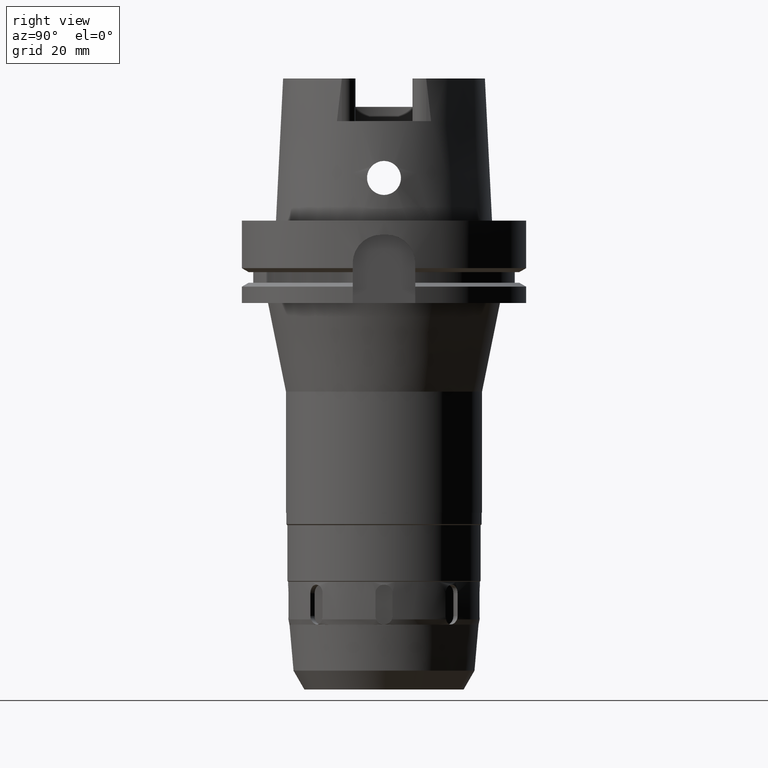
[diagram: clean part render]
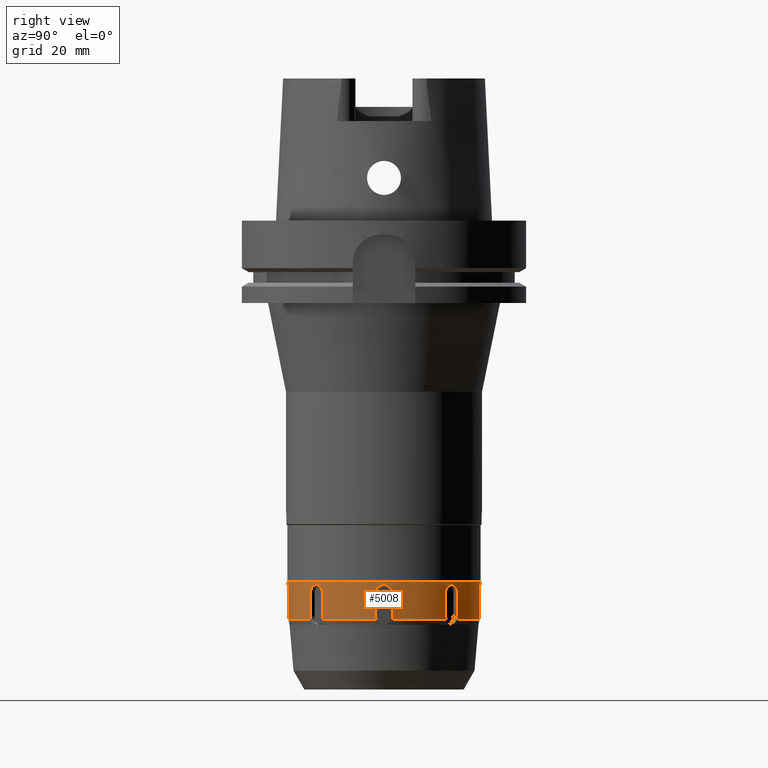
[diagram: same view with one face highlighted and labeled with its STEP entity id]
A machine part, right view. The second image highlights one B-rep face of the part: STEP entity #5008.
In plain terms, the highlighted cylindrical surface (partial cylindrical patch) has radius 33.75 mm, axis along (0, 0, 1).
Its self-contained STEP definition (entity closure, byte-faithful):
#1123=CARTESIAN_POINT('',(2.572974598340E1,2.184130704700E1,-1.402999986457E2));
#1133=CARTESIAN_POINT('',(2.184128028756E1,2.572981701866E1,-1.402998450080E2));
#1138=CARTESIAN_POINT('',(0.E0,0.E0,-1.403E2));
#1139=DIRECTION('',(0.E0,0.E0,1.E0));
#1140=DIRECTION('',(6.471499037996E-1,7.623627758569E-1,0.E0));
#1141=AXIS2_PLACEMENT_3D('',#1138,#1139,#1140);
#1170=CARTESIAN_POINT('',(2.749610718343E0,-3.363784549178E1,
-1.402998449470E2));
#1175=CARTESIAN_POINT('',(0.E0,0.E0,-1.403E2));
#1176=DIRECTION('',(0.E0,0.E0,1.E0));
#1177=DIRECTION('',(8.146780313864E-2,-9.966759739513E-1,0.E0));
#1178=AXIS2_PLACEMENT_3D('',#1175,#1176,#1177);
#1193=CARTESIAN_POINT('',(2.572981703984E1,-2.184128025816E1,
-1.402998450175E2));
#1198=CARTESIAN_POINT('',(0.E0,0.E0,-1.403E2));
#1199=DIRECTION('',(0.E0,0.E0,1.E0));
#1200=DIRECTION('',(7.623627781610E-1,-6.471499010853E-1,0.E0));
#1201=AXIS2_PLACEMENT_3D('',#1198,#1199,#1200);
#1216=CARTESIAN_POINT('',(3.363784548853E1,2.749610737293E0,-1.402998450068E2));
#1221=CARTESIAN_POINT('',(0.E0,0.E0,-1.403E2));
#1222=DIRECTION('',(0.E0,0.E0,1.E0));
#1223=DIRECTION('',(9.966759736240E-1,8.146780714250E-2,0.E0));
#1224=AXIS2_PLACEMENT_3D('',#1221,#1222,#1223);
#1243=CARTESIAN_POINT('',(2.164906564405E1,2.589170633117E1,-1.311E2));
#1244=CARTESIAN_POINT('',(2.164906564405E1,2.589170633117E1,-1.307766049589E2));
#1245=CARTESIAN_POINT('',(2.172534158947E1,2.582823132897E1,-1.301640068E2));
#1246=CARTESIAN_POINT('',(2.205726537707E1,2.554683458031E1,-1.293068180229E2));
#1247=CARTESIAN_POINT('',(2.256409941209E1,2.510234730451E1,-1.286336540263E2));
#1248=CARTESIAN_POINT('',(2.319563703515E1,2.452128148763E1,-1.281991570096E2));
#1249=CARTESIAN_POINT('',(2.363583134255E1,2.409387638756E1,-1.280999999999E2));
#1250=CARTESIAN_POINT('',(2.386485386505E1,2.386485386505E1,-1.280999999999E2));
#1255=CARTESIAN_POINT('',(2.386485386505E1,2.386485386505E1,-1.280999999999E2));
#1256=CARTESIAN_POINT('',(2.409343323396E1,2.363627449615E1,-1.280999999999E2));
#1257=CARTESIAN_POINT('',(2.452024747081E1,2.319673014394E1,-1.281986777436E2));
#1258=CARTESIAN_POINT('',(2.510183463358E1,2.256467609059E1,-1.286330667413E2));
#1259=CARTESIAN_POINT('',(2.554631740194E1,2.205786518577E1,-1.293057424913E2));
#1260=CARTESIAN_POINT('',(2.582813530600E1,2.172545921149E1,-1.301632798498E2));
#1261=CARTESIAN_POINT('',(2.589170633117E1,2.164906564405E1,-1.307763092495E2));
#1262=CARTESIAN_POINT('',(2.589170633117E1,2.164906564405E1,-1.311E2));
#1267=DIRECTION('',(-3.125743280318E-6,-3.299448771821E-6,-9.999999999897E-1));
#1268=VECTOR('',#1267,8.000000012220E0);
#1269=CARTESIAN_POINT('',(2.589170633117E1,2.164906564405E1,-1.311E2));
#1270=LINE('',#1269,#1268);
#1274=CARTESIAN_POINT('',(2.589168132522E1,2.164903924846E1,-1.391000000121E2));
#1275=CARTESIAN_POINT('',(2.589168132522E1,2.164903924846E1,-1.392380587389E2));
#1276=CARTESIAN_POINT('',(2.587960033775E1,2.166358331518E1,-1.395110857448E2));
#1277=CARTESIAN_POINT('',(2.582510928778E1,2.172855005247E1,-1.399159151438E2));
#1278=CARTESIAN_POINT('',(2.576558164292E1,2.179909153825E1,-1.401735407903E2));
#1279=CARTESIAN_POINT('',(2.572974598340E1,2.184130704700E1,-1.402999986457E2));
#1284=CARTESIAN_POINT('',(3.363784548853E1,2.749610737293E0,-1.402998450068E2));
#1285=CARTESIAN_POINT('',(3.363333602986E1,2.804779389328E0,-1.401733794141E2));
#1286=CARTESIAN_POINT('',(3.362550473139E1,2.896678174790E0,-1.399159895307E2));
#1287=CARTESIAN_POINT('',(3.361809570642E1,2.981174801291E0,-1.395110635610E2));
#1288=CARTESIAN_POINT('',(3.361640177101E1,3.000001866533E0,-1.392380584445E2));
#1289=CARTESIAN_POINT('',(3.361640177101E1,3.000001866533E0,-1.391000000002E2));
#1294=DIRECTION('',(5.943944714030E-8,-2.333165945377E-7,1.E0));
#1295=VECTOR('',#1294,8.000000000234E0);
#1296=CARTESIAN_POINT('',(3.361640177101E1,3.000001866533E0,-1.391000000002E2));
#1297=LINE('',#1296,#1295);
#1301=CARTESIAN_POINT('',(3.361640224652E1,3.E0,-1.311E2));
#1302=CARTESIAN_POINT('',(3.361640224652E1,3.E0,-1.307765582536E2));
#1303=CARTESIAN_POINT('',(3.362545719508E1,2.901145332203E0,-1.301639650515E2));
#1304=CARTESIAN_POINT('',(3.366116528376E1,2.467682436359E0,-1.293072142558E2));
#1305=CARTESIAN_POINT('',(3.370520572884E1,1.795845103717E0,-1.286345018785E2));
#1306=CARTESIAN_POINT('',(3.374091857024E1,9.388369475479E-1,
-1.281995746844E2));
#1307=CARTESIAN_POINT('',(3.375E1,3.245166352607E-1,-1.281E2));
#1308=CARTESIAN_POINT('',(3.375E1,0.E0,-1.281E2));
#1313=CARTESIAN_POINT('',(3.375E1,0.E0,-1.281E2));
#1314=CARTESIAN_POINT('',(3.375E1,-3.233261027760E-1,-1.281E2));
#1315=CARTESIAN_POINT('',(3.374098812492E1,-9.359715998739E-1,
-1.281988133909E2));
#1316=CARTESIAN_POINT('',(3.370536580566E1,-1.792971865574E0,
-1.286323947321E2));
#1317=CARTESIAN_POINT('',(3.366128977950E1,-2.466095948930E0,
-1.293048147054E2));
#1318=CARTESIAN_POINT('',(3.362548522766E1,-2.900849013384E0,
-1.301625707948E2));
#1319=CARTESIAN_POINT('',(3.361640224652E1,-3.E0,-1.307760240934E2));
#1320=CARTESIAN_POINT('',(3.361640224652E1,-3.E0,-1.311E2));
#1325=DIRECTION('',(-4.543418004653E-6,-1.225732924397E-7,-9.999999999897E-1));
#1326=VECTOR('',#1325,8.000000012220E0);
#1327=CARTESIAN_POINT('',(3.361640224652E1,-3.E0,-1.311E2));
#1328=LINE('',#1327,#1326);
#1332=CARTESIAN_POINT('',(3.361636589918E1,-3.000000980586E0,
-1.391000000121E2));
#1333=CARTESIAN_POINT('',(3.361636589918E1,-3.000000980586E0,
-1.392380587386E2));
#1334=CARTESIAN_POINT('',(3.361810756180E1,-2.981174213466E0,
-1.395110857448E2));
#1335=CARTESIAN_POINT('',(3.362551498932E1,-2.896704819745E0,
-1.399159151448E2));
#1336=CARTESIAN_POINT('',(3.363330295063E1,-2.804732053986E0,
-1.401735407950E2));
#1337=CARTESIAN_POINT('',(3.363781418522E1,-2.749541544733E0,
-1.402999986473E2));
#1342=CARTESIAN_POINT('',(2.572981703984E1,-2.184128025816E1,
-1.402998450175E2));
#1343=CARTESIAN_POINT('',(2.576563850089E1,-2.179908145921E1,
-1.401733794222E2));
#1344=CARTESIAN_POINT('',(2.582508319623E1,-2.172856163763E1,
-1.399159895243E2));
#1345=CARTESIAN_POINT('',(2.587959237112E1,-2.166357451629E1,
-1.395110635628E2));
#1346=CARTESIAN_POINT('',(2.589170731572E1,-2.164906398638E1,
-1.392380584449E2));
#1347=CARTESIAN_POINT('',(2.589170731572E1,-2.164906398638E1,
-1.391000000002E2));
#1352=DIRECTION('',(-1.230681507777E-7,-2.072091831390E-7,1.E0));
#1353=VECTOR('',#1352,8.000000000234E0);
#1354=CARTESIAN_POINT('',(2.589170731572E1,-2.164906398638E1,
-1.391000000002E2));
#1355=LINE('',#1354,#1353);
#1359=CARTESIAN_POINT('',(2.589170633117E1,-2.164906564405E1,-1.311E2));
#1360=CARTESIAN_POINT('',(2.589170633117E1,-2.164906564405E1,
-1.307760815845E2));
#1361=CARTESIAN_POINT('',(2.582801283481E1,-2.172560509886E1,
-1.301628341251E2));
#1362=CARTESIAN_POINT('',(2.554645354192E1,-2.205770132852E1,
-1.293062520583E2));
#1363=CARTESIAN_POINT('',(2.510265254674E1,-2.256375292247E1,
-1.286340755659E2));
#1364=CARTESIAN_POINT('',(2.452153053642E1,-2.319537776565E1,
-1.281992205186E2));
#1365=CARTESIAN_POINT('',(2.409400038721E1,-2.363570734288E1,-1.281E2));
#1366=CARTESIAN_POINT('',(2.386485386505E1,-2.386485386505E1,-1.281E2));
#1371=CARTESIAN_POINT('',(2.386485386505E1,-2.386485386505E1,-1.281E2));
#1372=CARTESIAN_POINT('',(2.363629600104E1,-2.409341172905E1,-1.281E2));
#1373=CARTESIAN_POINT('',(2.319681112345E1,-2.452015988020E1,
-1.281987541228E2));
#1374=CARTESIAN_POINT('',(2.256559646479E1,-2.510100341124E1,
-1.286322476610E2));
#1375=CARTESIAN_POINT('',(2.205833840228E1,-2.554591520747E1,
-1.293048066218E2));
#1376=CARTESIAN_POINT('',(2.172565200509E1,-2.582797352534E1,
-1.301623858044E2));
#1377=CARTESIAN_POINT('',(2.164906564405E1,-2.589170633117E1,
-1.307759486571E2));
#1378=CARTESIAN_POINT('',(2.164906564405E1,-2.589170633117E1,-1.311E2));
#1383=DIRECTION('',(-3.301466660341E-6,3.124544784794E-6,-9.999999999897E-1));
#1384=VECTOR('',#1383,8.000000012222E0);
#1385=CARTESIAN_POINT('',(2.164906564405E1,-2.589170633117E1,-1.311E2));
#1386=LINE('',#1385,#1384);
#1390=CARTESIAN_POINT('',(2.164903923232E1,-2.589168133481E1,
-1.391000000121E2));
#1391=CARTESIAN_POINT('',(2.164903923232E1,-2.589168133481E1,
-1.392380587389E2));
#1392=CARTESIAN_POINT('',(2.166358325822E1,-2.587960038784E1,
-1.395110857416E2));
#1393=CARTESIAN_POINT('',(2.172855010221E1,-2.582510924368E1,
-1.399159151254E2));
#1394=CARTESIAN_POINT('',(2.179909156009E1,-2.576558162831E1,
-1.401735407565E2));
#1395=CARTESIAN_POINT('',(2.184130707460E1,-2.572974596364E1,
-1.402999986340E2));
#1400=CARTESIAN_POINT('',(2.749610718343E0,-3.363784549178E1,
-1.402998449470E2));
#1401=CARTESIAN_POINT('',(2.804779373102E0,-3.363333603311E1,
-1.401733793256E2));
#1402=CARTESIAN_POINT('',(2.896678097107E0,-3.362550473679E1,
-1.399159895343E2));
#1403=CARTESIAN_POINT('',(2.981174894786E0,-3.361809570003E1,
-1.395110635513E2));
#1404=CARTESIAN_POINT('',(3.000001887010E0,-3.361640176579E1,
-1.392380584448E2));
#1405=CARTESIAN_POINT('',(3.000001887010E0,-3.361640176579E1,
-1.391000000002E2));
#1410=DIRECTION('',(-2.358761891849E-7,-6.009151842612E-8,1.E0));
#1411=VECTOR('',#1410,8.000000000237E0);
#1412=CARTESIAN_POINT('',(3.000001887010E0,-3.361640176579E1,
-1.391000000002E2));
#1413=LINE('',#1412,#1411);
#1417=CARTESIAN_POINT('',(3.E0,-3.361640224652E1,-1.311E2));
#1418=CARTESIAN_POINT('',(3.E0,-3.361640224652E1,-1.307764867176E2));
#1419=CARTESIAN_POINT('',(2.901087607002E0,-3.362546212912E1,
-1.301637673492E2));
#1420=CARTESIAN_POINT('',(2.467551914322E0,-3.366117623386E1,
-1.293069893451E2));
#1421=CARTESIAN_POINT('',(1.795319333973E0,-3.370523673289E1,
-1.286340762759E2));
#1422=CARTESIAN_POINT('',(9.381664894985E-1,-3.374093566123E1,
-1.281993893575E2));
#1423=CARTESIAN_POINT('',(3.242298923958E-1,-3.375E1,-1.281E2));
#1424=CARTESIAN_POINT('',(1.199356313005E-13,-3.375E1,-1.281E2));
#1429=DIRECTION('',(-5.937182293182E-14,-2.706829469562E-14,-1.E0));
#1430=VECTOR('',#1429,1.05E0);
#1431=CARTESIAN_POINT('',(0.E0,3.375E1,-1.2705E2));
#1432=LINE('',#1431,#1430);
#1436=CARTESIAN_POINT('',(-5.820723113129E-14,3.375E1,-1.281E2));
#1437=CARTESIAN_POINT('',(3.234598415020E-1,3.375E1,-1.281E2));
#1438=CARTESIAN_POINT('',(9.362698530102E-1,3.374097929880E1,
-1.281989153223E2));
#1439=CARTESIAN_POINT('',(1.793014693797E0,3.370536137300E1,-1.286324553280E2));
#1440=CARTESIAN_POINT('',(2.465972225213E0,3.366129825243E1,-1.293047224769E2));
#1441=CARTESIAN_POINT('',(2.900649497161E0,3.362550273290E1,-1.301619848646E2));
#1442=CARTESIAN_POINT('',(3.E0,3.361640224652E1,-1.307757675331E2));
#1443=CARTESIAN_POINT('',(3.E0,3.361640224652E1,-1.311E2));
#1448=DIRECTION('',(1.250577409716E-7,-4.543864876525E-6,-9.999999999897E-1));
#1449=VECTOR('',#1448,8.000000012221E0);
#1450=CARTESIAN_POINT('',(3.E0,3.361640224652E1,-1.311E2));
#1451=LINE('',#1450,#1449);
#1455=CARTESIAN_POINT('',(3.000001000462E0,3.361636589560E1,-1.391000000121E2));
#1456=CARTESIAN_POINT('',(3.000001000462E0,3.361636589560E1,-1.392380587387E2));
#1457=CARTESIAN_POINT('',(2.981174299063E0,3.361810755556E1,-1.395110857415E2));
#1458=CARTESIAN_POINT('',(2.896704746050E0,3.362551499390E1,-1.399159151241E2));
#1459=CARTESIAN_POINT('',(2.804732023842E0,3.363330295656E1,-1.401735407572E2));
#1460=CARTESIAN_POINT('',(2.749541505494E0,3.363781419167E1,-1.402999986350E2));
#1465=CARTESIAN_POINT('',(2.184128028756E1,2.572981701866E1,-1.402998450080E2));
#1466=CARTESIAN_POINT('',(2.179908148240E1,2.576563848524E1,-1.401733793900E2));
#1467=CARTESIAN_POINT('',(2.172856168920E1,2.582508315053E1,-1.399159895039E2));
#1468=CARTESIAN_POINT('',(2.166357445876E1,2.587959242175E1,-1.395110635598E2));
#1469=CARTESIAN_POINT('',(2.164906396993E1,2.589170732548E1,-1.392380584448E2));
#1470=CARTESIAN_POINT('',(2.164906396993E1,2.589170732548E1,-1.391000000002E2));
#1475=DIRECTION('',(2.092649355961E-7,-1.242891265426E-7,1.E0));
#1476=VECTOR('',#1475,8.000000000237E0);
#1477=CARTESIAN_POINT('',(2.164906396993E1,2.589170732548E1,-1.391000000002E2));
#1478=LINE('',#1477,#1476);
#2078=DIRECTION('',(7.533788738119E-14,2.706829469562E-14,-1.E0));
#2079=VECTOR('',#2078,1.05E0);
#2080=CARTESIAN_POINT('',(4.083084955020E-14,-3.375E1,-1.2705E2));
#2081=LINE('',#2080,#2079);
#2443=CARTESIAN_POINT('',(0.E0,0.E0,-1.2705E2));
#2444=DIRECTION('',(0.E0,0.E0,-1.E0));
#2445=DIRECTION('',(0.E0,1.E0,0.E0));
#2446=AXIS2_PLACEMENT_3D('',#2443,#2444,#2445);
#3728=VERTEX_POINT('',#1123);
#3729=VERTEX_POINT('',#1133);
#3730=CARTESIAN_POINT('',(2.749531895288E0,3.363781464895E1,-1.403E2));
#3731=VERTEX_POINT('',#3730);
#3735=VERTEX_POINT('',#1170);
#3736=CARTESIAN_POINT('',(2.184131419257E1,-2.572973949230E1,-1.403E2));
#3737=VERTEX_POINT('',#3736);
#3738=VERTEX_POINT('',#1193);
#3739=CARTESIAN_POINT('',(3.363781463801E1,-2.749532029131E0,-1.403E2));
#3740=VERTEX_POINT('',#3739);
#3741=VERTEX_POINT('',#1216);
#3742=VERTEX_POINT('',#1274);
#3749=CARTESIAN_POINT('',(2.164906396993E1,2.589170732548E1,-1.391000000002E2));
#3750=VERTEX_POINT('',#3749);
#3751=VERTEX_POINT('',#1255);
#3752=VERTEX_POINT('',#1262);
#3753=VERTEX_POINT('',#1243);
#3754=VERTEX_POINT('',#1289);
#3755=CARTESIAN_POINT('',(3.361640224652E1,3.E0,-1.311E2));
#3756=VERTEX_POINT('',#3755);
#3757=VERTEX_POINT('',#1313);
#3758=VERTEX_POINT('',#1320);
#3759=CARTESIAN_POINT('',(3.361636589918E1,-3.000000980586E0,
-1.391000000121E2));
#3760=VERTEX_POINT('',#3759);
#3761=VERTEX_POINT('',#1347);
#3762=CARTESIAN_POINT('',(2.589170633117E1,-2.164906564405E1,-1.311E2));
#3763=VERTEX_POINT('',#3762);
#3764=VERTEX_POINT('',#1371);
#3765=VERTEX_POINT('',#1378);
#3766=CARTESIAN_POINT('',(2.164903923232E1,-2.589168133481E1,
-1.391000000121E2));
#3767=VERTEX_POINT('',#3766);
#3768=VERTEX_POINT('',#1405);
#3769=CARTESIAN_POINT('',(3.E0,-3.361640224652E1,-1.311E2));
#3770=VERTEX_POINT('',#3769);
#3771=VERTEX_POINT('',#1424);
#3772=CARTESIAN_POINT('',(4.083084955020E-14,-3.375E1,-1.2705E2));
#3773=VERTEX_POINT('',#3772);
#3774=CARTESIAN_POINT('',(0.E0,3.375E1,-1.2705E2));
#3775=VERTEX_POINT('',#3774);
#3776=CARTESIAN_POINT('',(-5.820723113129E-14,3.375E1,-1.281E2));
#3777=VERTEX_POINT('',#3776);
#3778=VERTEX_POINT('',#1443);
#3779=CARTESIAN_POINT('',(3.000001000462E0,3.361636589560E1,-1.391000000121E2));
#3780=VERTEX_POINT('',#3779);
#4945=CARTESIAN_POINT('',(0.E0,0.E0,-1.7575E2));
#4946=DIRECTION('',(0.E0,0.E0,1.E0));
#4947=DIRECTION('',(0.E0,1.E0,0.E0));
#4948=AXIS2_PLACEMENT_3D('',#4945,#4946,#4947);
#4949=CYLINDRICAL_SURFACE('',#4948,3.375E1);
#4951=ORIENTED_EDGE('',*,*,#4950,.T.);
#4953=ORIENTED_EDGE('',*,*,#4952,.T.);
#4955=ORIENTED_EDGE('',*,*,#4954,.T.);
#4956=ORIENTED_EDGE('',*,*,#4930,.T.);
#4957=ORIENTED_EDGE('',*,*,#4919,.F.);
#4959=ORIENTED_EDGE('',*,*,#4958,.T.);
#4961=ORIENTED_EDGE('',*,*,#4960,.T.);
#4963=ORIENTED_EDGE('',*,*,#4962,.T.);
#4965=ORIENTED_EDGE('',*,*,#4964,.T.);
#4967=ORIENTED_EDGE('',*,*,#4966,.T.);
#4969=ORIENTED_EDGE('',*,*,#4968,.T.);
#4970=ORIENTED_EDGE('',*,*,#4915,.F.);
#4972=ORIENTED_EDGE('',*,*,#4971,.T.);
#4974=ORIENTED_EDGE('',*,*,#4973,.T.);
#4976=ORIENTED_EDGE('',*,*,#4975,.T.);
#4978=ORIENTED_EDGE('',*,*,#4977,.T.);
#4980=ORIENTED_EDGE('',*,*,#4979,.T.);
#4982=ORIENTED_EDGE('',*,*,#4981,.T.);
#4983=ORIENTED_EDGE('',*,*,#4911,.F.);
#4985=ORIENTED_EDGE('',*,*,#4984,.T.);
#4987=ORIENTED_EDGE('',*,*,#4986,.T.);
#4989=ORIENTED_EDGE('',*,*,#4988,.T.);
#4991=ORIENTED_EDGE('',*,*,#4990,.F.);
#4993=ORIENTED_EDGE('',*,*,#4992,.F.);
#4995=ORIENTED_EDGE('',*,*,#4994,.T.);
#4997=ORIENTED_EDGE('',*,*,#4996,.T.);
#4999=ORIENTED_EDGE('',*,*,#4998,.T.);
#5001=ORIENTED_EDGE('',*,*,#5000,.T.);
#5002=ORIENTED_EDGE('',*,*,#4900,.F.);
#5003=ORIENTED_EDGE('',*,*,#4940,.T.);
#5005=ORIENTED_EDGE('',*,*,#5004,.T.);
#5006=EDGE_LOOP('',(#4951,#4953,#4955,#4956,#4957,#4959,#4961,#4963,#4965,#4967,
#4969,#4970,#4972,#4974,#4976,#4978,#4980,#4982,#4983,#4985,#4987,#4989,#4991,
#4993,#4995,#4997,#4999,#5001,#5002,#5003,#5005));
#5007=FACE_OUTER_BOUND('',#5006,.F.);
#1142=CIRCLE('',#1141,3.375000000001E1);
#1179=CIRCLE('',#1178,3.375000000001E1);
#1202=CIRCLE('',#1201,3.375000000001E1);
#1225=CIRCLE('',#1224,3.375000000001E1);
#1251=B_SPLINE_CURVE_WITH_KNOTS('',3,(#1243,#1244,#1245,#1246,#1247,#1248,#1249,
#1250),.UNSPECIFIED.,.F.,.F.,(4,1,1,1,1,4),(0.E0,2.E-1,4.E-1,6.E-1,8.E-1,1.E0),
.UNSPECIFIED.);
#1263=B_SPLINE_CURVE_WITH_KNOTS('',3,(#1255,#1256,#1257,#1258,#1259,#1260,#1261,
#1262),.UNSPECIFIED.,.F.,.F.,(4,1,1,1,1,4),(0.E0,2.E-1,4.E-1,6.E-1,8.E-1,1.E0),
.UNSPECIFIED.);
#1280=B_SPLINE_CURVE_WITH_KNOTS('',3,(#1274,#1275,#1276,#1277,#1278,#1279),
.UNSPECIFIED.,.F.,.F.,(4,1,1,4),(0.E0,3.333333333333E-1,6.666666666667E-1,1.E0),
.UNSPECIFIED.);
#1290=B_SPLINE_CURVE_WITH_KNOTS('',3,(#1284,#1285,#1286,#1287,#1288,#1289),
.UNSPECIFIED.,.F.,.F.,(4,1,1,4),(0.E0,3.333333333333E-1,6.666666666667E-1,1.E0),
.UNSPECIFIED.);
#1309=B_SPLINE_CURVE_WITH_KNOTS('',3,(#1301,#1302,#1303,#1304,#1305,#1306,#1307,
#1308),.UNSPECIFIED.,.F.,.F.,(4,1,1,1,1,4),(0.E0,2.E-1,4.E-1,6.E-1,8.E-1,1.E0),
.UNSPECIFIED.);
#1321=B_SPLINE_CURVE_WITH_KNOTS('',3,(#1313,#1314,#1315,#1316,#1317,#1318,#1319,
#1320),.UNSPECIFIED.,.F.,.F.,(4,1,1,1,1,4),(0.E0,2.E-1,4.E-1,6.E-1,8.E-1,1.E0),
.UNSPECIFIED.);
#1338=B_SPLINE_CURVE_WITH_KNOTS('',3,(#1332,#1333,#1334,#1335,#1336,#1337),
.UNSPECIFIED.,.F.,.F.,(4,1,1,4),(0.E0,3.333333333333E-1,6.666666666667E-1,1.E0),
.UNSPECIFIED.);
#1348=B_SPLINE_CURVE_WITH_KNOTS('',3,(#1342,#1343,#1344,#1345,#1346,#1347),
.UNSPECIFIED.,.F.,.F.,(4,1,1,4),(0.E0,3.333333333333E-1,6.666666666667E-1,1.E0),
.UNSPECIFIED.);
#1367=B_SPLINE_CURVE_WITH_KNOTS('',3,(#1359,#1360,#1361,#1362,#1363,#1364,#1365,
#1366),.UNSPECIFIED.,.F.,.F.,(4,1,1,1,1,4),(0.E0,2.E-1,4.E-1,6.E-1,8.E-1,1.E0),
.UNSPECIFIED.);
#1379=B_SPLINE_CURVE_WITH_KNOTS('',3,(#1371,#1372,#1373,#1374,#1375,#1376,#1377,
#1378),.UNSPECIFIED.,.F.,.F.,(4,1,1,1,1,4),(0.E0,2.E-1,4.E-1,6.E-1,8.E-1,1.E0),
.UNSPECIFIED.);
#1396=B_SPLINE_CURVE_WITH_KNOTS('',3,(#1390,#1391,#1392,#1393,#1394,#1395),
.UNSPECIFIED.,.F.,.F.,(4,1,1,4),(0.E0,3.333333333333E-1,6.666666666667E-1,1.E0),
.UNSPECIFIED.);
#1406=B_SPLINE_CURVE_WITH_KNOTS('',3,(#1400,#1401,#1402,#1403,#1404,#1405),
.UNSPECIFIED.,.F.,.F.,(4,1,1,4),(0.E0,3.333333333333E-1,6.666666666667E-1,1.E0),
.UNSPECIFIED.);
#1425=B_SPLINE_CURVE_WITH_KNOTS('',3,(#1417,#1418,#1419,#1420,#1421,#1422,#1423,
#1424),.UNSPECIFIED.,.F.,.F.,(4,1,1,1,1,4),(0.E0,2.E-1,4.E-1,6.E-1,8.E-1,1.E0),
.UNSPECIFIED.);
#1444=B_SPLINE_CURVE_WITH_KNOTS('',3,(#1436,#1437,#1438,#1439,#1440,#1441,#1442,
#1443),.UNSPECIFIED.,.F.,.F.,(4,1,1,1,1,4),(0.E0,2.E-1,4.E-1,6.E-1,8.E-1,1.E0),
.UNSPECIFIED.);
#1461=B_SPLINE_CURVE_WITH_KNOTS('',3,(#1455,#1456,#1457,#1458,#1459,#1460),
.UNSPECIFIED.,.F.,.F.,(4,1,1,4),(0.E0,3.333333333333E-1,6.666666666667E-1,1.E0),
.UNSPECIFIED.);
#1471=B_SPLINE_CURVE_WITH_KNOTS('',3,(#1465,#1466,#1467,#1468,#1469,#1470),
.UNSPECIFIED.,.F.,.F.,(4,1,1,4),(0.E0,3.333333333333E-1,6.666666666667E-1,1.E0),
.UNSPECIFIED.);
#2447=CIRCLE('',#2446,3.375E1);
#4900=EDGE_CURVE('',#3729,#3731,#1142,.T.);
#4911=EDGE_CURVE('',#3735,#3737,#1179,.T.);
#4915=EDGE_CURVE('',#3738,#3740,#1202,.T.);
#4919=EDGE_CURVE('',#3741,#3728,#1225,.T.);
#4930=EDGE_CURVE('',#3742,#3728,#1280,.T.);
#4940=EDGE_CURVE('',#3729,#3750,#1471,.T.);
#4950=EDGE_CURVE('',#3753,#3751,#1251,.T.);
#4952=EDGE_CURVE('',#3751,#3752,#1263,.T.);
#4954=EDGE_CURVE('',#3752,#3742,#1270,.T.);
#4958=EDGE_CURVE('',#3741,#3754,#1290,.T.);
#4960=EDGE_CURVE('',#3754,#3756,#1297,.T.);
#4962=EDGE_CURVE('',#3756,#3757,#1309,.T.);
#4964=EDGE_CURVE('',#3757,#3758,#1321,.T.);
#4966=EDGE_CURVE('',#3758,#3760,#1328,.T.);
#4968=EDGE_CURVE('',#3760,#3740,#1338,.T.);
#4971=EDGE_CURVE('',#3738,#3761,#1348,.T.);
#4973=EDGE_CURVE('',#3761,#3763,#1355,.T.);
#4975=EDGE_CURVE('',#3763,#3764,#1367,.T.);
#4977=EDGE_CURVE('',#3764,#3765,#1379,.T.);
#4979=EDGE_CURVE('',#3765,#3767,#1386,.T.);
#4981=EDGE_CURVE('',#3767,#3737,#1396,.T.);
#4984=EDGE_CURVE('',#3735,#3768,#1406,.T.);
#4986=EDGE_CURVE('',#3768,#3770,#1413,.T.);
#4988=EDGE_CURVE('',#3770,#3771,#1425,.T.);
#4990=EDGE_CURVE('',#3773,#3771,#2081,.T.);
#4992=EDGE_CURVE('',#3775,#3773,#2447,.T.);
#4994=EDGE_CURVE('',#3775,#3777,#1432,.T.);
#4996=EDGE_CURVE('',#3777,#3778,#1444,.T.);
#4998=EDGE_CURVE('',#3778,#3780,#1451,.T.);
#5000=EDGE_CURVE('',#3780,#3731,#1461,.T.);
#5004=EDGE_CURVE('',#3750,#3753,#1478,.T.);
#5008=ADVANCED_FACE('',(#5007),#4949,.T.);